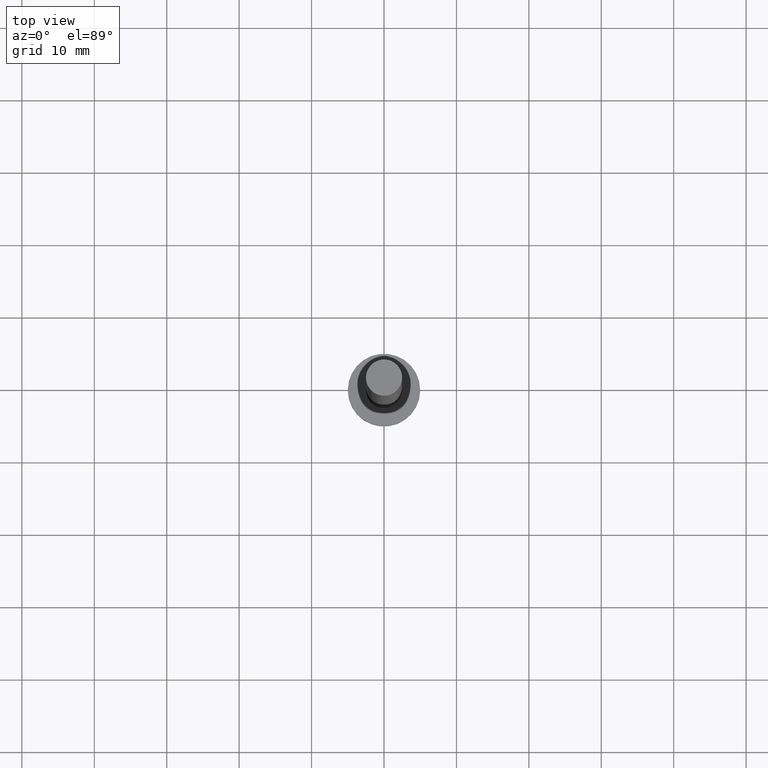
[diagram: clean part render]
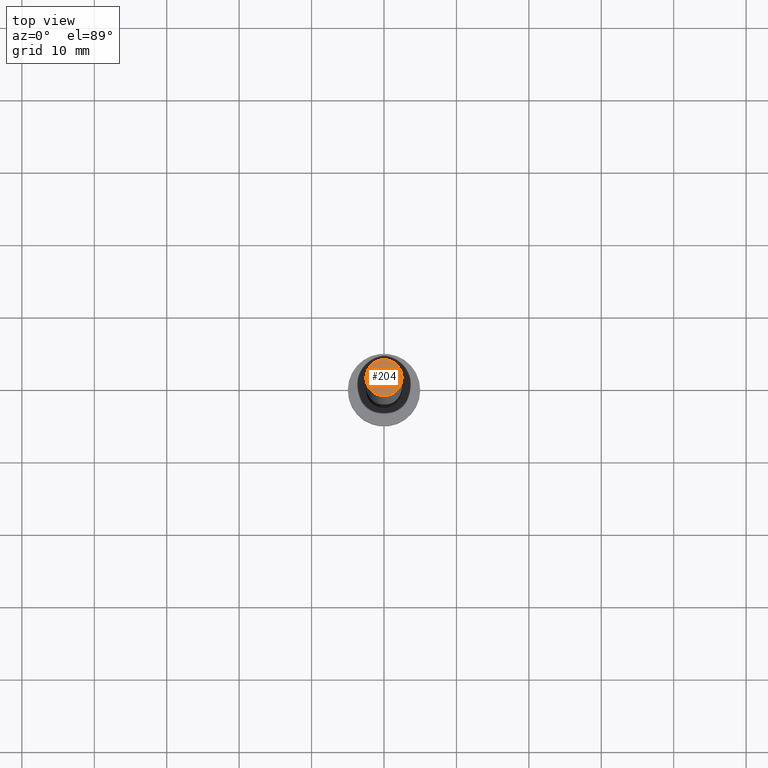
[diagram: same view with one face highlighted and labeled with its STEP entity id]
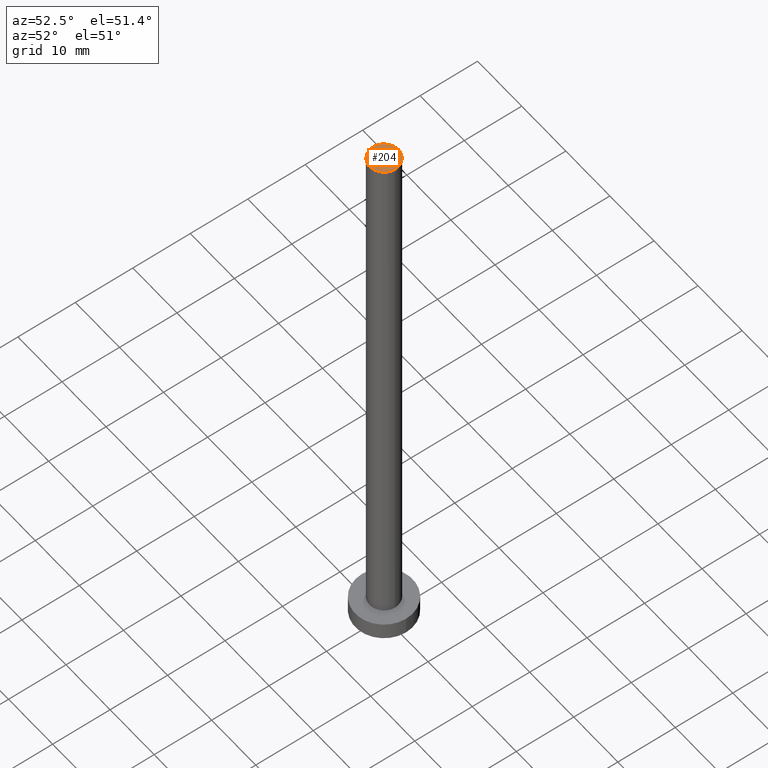
[diagram: same view with one face highlighted and labeled with its STEP entity id]
A machine part, top view. The second image highlights one B-rep face of the part: STEP entity #204.
A second angle (auxiliary view) of the same face is appended — the face is thin or edge-on in the first view.
In plain terms, the highlighted planar face has unit normal (0, 0, 1).
Its self-contained STEP definition (entity closure, byte-faithful):
#5 = AXIS2_PLACEMENT_3D ( 'NONE', #132, #152, #153 ) ;
#10 = ORIENTED_EDGE ( 'NONE', *, *, #115, .T. ) ;
#12 = VERTEX_POINT ( 'NONE', #169 ) ;
#22 = DIRECTION ( 'NONE',  ( 1.000000000000000000, 0.000000000000000000, -0.000000000000000000 ) ) ;
#24 = CIRCLE ( 'NONE', #5, 2.500000000000000000 ) ;
#30 = ORIENTED_EDGE ( 'NONE', *, *, #232, .T. ) ;
#32 = CARTESIAN_POINT ( 'NONE',  ( 2.500000000000000000, 3.061616997868382648E-16, 100.0000000000000000 ) ) ;
#75 = VERTEX_POINT ( 'NONE', #32 ) ;
#78 = AXIS2_PLACEMENT_3D ( 'NONE', #129, #126, #231 ) ;
#87 = FACE_OUTER_BOUND ( 'NONE', #173, .T. ) ;
#115 = EDGE_CURVE ( 'NONE', #75, #12, #241, .T. ) ;
#126 = DIRECTION ( 'NONE',  ( 0.000000000000000000, 0.000000000000000000, 1.000000000000000000 ) ) ;
#129 = CARTESIAN_POINT ( 'NONE',  ( 0.000000000000000000, 0.000000000000000000, 100.0000000000000000 ) ) ;
#132 = CARTESIAN_POINT ( 'NONE',  ( 0.000000000000000000, 0.000000000000000000, 100.0000000000000000 ) ) ;
#150 = AXIS2_PLACEMENT_3D ( 'NONE', #171, #240, #22 ) ;
#152 = DIRECTION ( 'NONE',  ( 0.000000000000000000, 0.000000000000000000, 1.000000000000000000 ) ) ;
#153 = DIRECTION ( 'NONE',  ( 1.000000000000000000, 0.000000000000000000, 0.000000000000000000 ) ) ;
#169 = CARTESIAN_POINT ( 'NONE',  ( -2.500000000000000000, 0.000000000000000000, 100.0000000000000000 ) ) ;
#171 = CARTESIAN_POINT ( 'NONE',  ( 0.000000000000000000, 0.000000000000000000, 100.0000000000000000 ) ) ;
#173 = EDGE_LOOP ( 'NONE', ( #30, #10 ) ) ;
#204 = ADVANCED_FACE ( 'NONE', ( #87 ), #215, .T. ) ;
#215 = PLANE ( 'NONE',  #150 ) ;
#231 = DIRECTION ( 'NONE',  ( 1.000000000000000000, 0.000000000000000000, 0.000000000000000000 ) ) ;
#232 = EDGE_CURVE ( 'NONE', #12, #75, #24, .T. ) ;
#240 = DIRECTION ( 'NONE',  ( 0.000000000000000000, 0.000000000000000000, 1.000000000000000000 ) ) ;
#241 = CIRCLE ( 'NONE', #78, 2.500000000000000000 ) ;